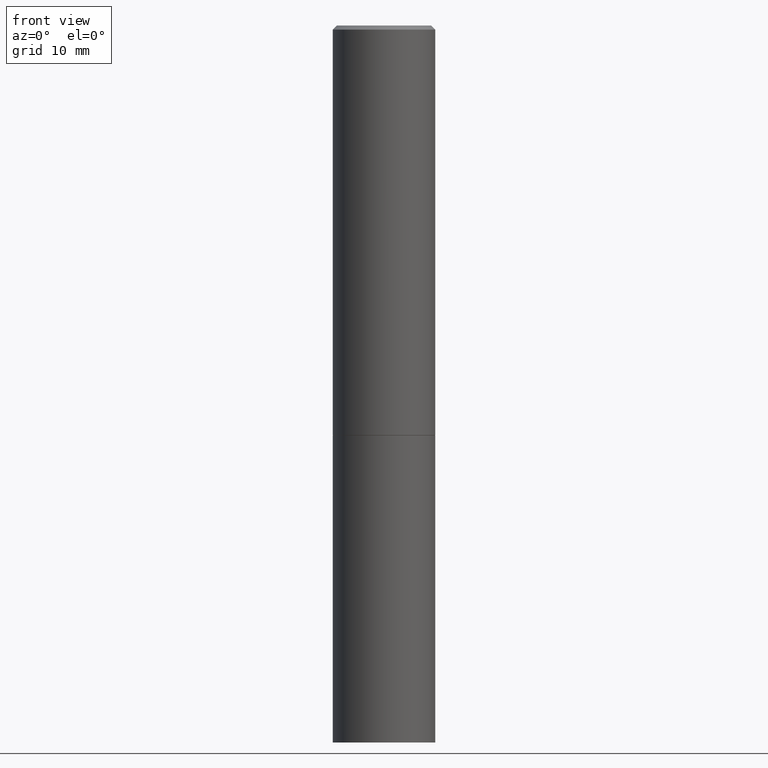
[diagram: clean part render]
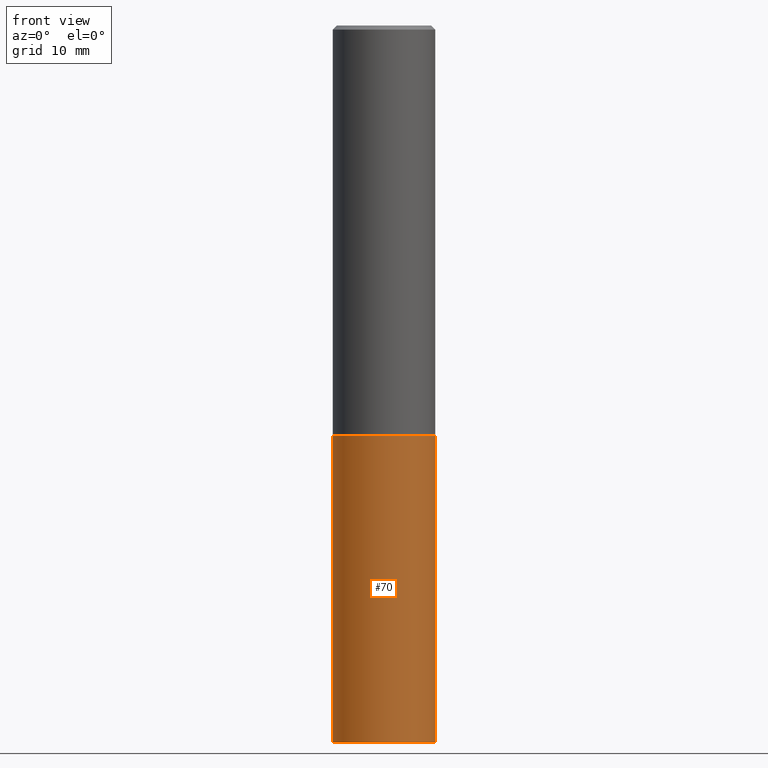
[diagram: same view with one face highlighted and labeled with its STEP entity id]
A machine part, front view. The second image highlights one B-rep face of the part: STEP entity #70.
In plain terms, the highlighted cylindrical surface (partial cylindrical patch) has radius 6.35 mm, axis along (-0, 0, 1).
Its self-contained STEP definition (entity closure, byte-faithful):
#4 = DIRECTION ( 'NONE',  ( -2.445468806185136597E-29, 3.491481338843145583E-15, 1.000000000000000000 ) ) ;
#5 = AXIS2_PLACEMENT_3D ( 'NONE', #92, #4, #265 ) ;
#28 = EDGE_LOOP ( 'NONE', ( #300, #117, #273, #296 ) ) ;
#31 = CARTESIAN_POINT ( 'NONE',  ( 0.000000000000000000, 0.000000000000000000, 0.000000000000000000 ) ) ;
#41 = LINE ( 'NONE', #327, #303 ) ;
#43 = EDGE_CURVE ( 'NONE', #280, #298, #129, .T. ) ;
#49 = AXIS2_PLACEMENT_3D ( 'NONE', #31, #116, #115 ) ;
#59 = DIRECTION ( 'NONE',  ( 1.000000000000000000, -6.982962677686266711E-15, 0.000000000000000000 ) ) ;
#61 = VERTEX_POINT ( 'NONE', #199 ) ;
#70 = ADVANCED_FACE ( 'NONE', ( #258 ), #287, .T. ) ;
#73 = DIRECTION ( 'NONE',  ( -2.445468806185136877E-29, 3.491481338843145188E-15, 1.000000000000000000 ) ) ;
#83 = DIRECTION ( 'NONE',  ( -2.445468806185136597E-29, 3.491481338843145583E-15, 1.000000000000000000 ) ) ;
#92 = CARTESIAN_POINT ( 'NONE',  ( 8.559140821647976968E-29, -1.222018468595100934E-14, -3.500000000000000000 ) ) ;
#102 = EDGE_CURVE ( 'NONE', #144, #280, #41, .T. ) ;
#113 = CIRCLE ( 'NONE', #5, 0.2500000000000000000 ) ;
#115 = DIRECTION ( 'NONE',  ( 1.000000000000000000, -6.982962677686266711E-15, 4.876176775795935793E-29 ) ) ;
#116 = DIRECTION ( 'NONE',  ( -2.445468806185136597E-29, 3.491481338843145583E-15, 1.000000000000000000 ) ) ;
#117 = ORIENTED_EDGE ( 'NONE', *, *, #351, .T. ) ;
#129 = CIRCLE ( 'NONE', #187, 0.2500000000000000000 ) ;
#132 = CARTESIAN_POINT ( 'NONE',  ( -0.2500000000000000000, -7.825216842418397817E-15, -1.999999999999999778 ) ) ;
#144 = VERTEX_POINT ( 'NONE', #321 ) ;
#160 = CARTESIAN_POINT ( 'NONE',  ( 0.2500000000000000000, -1.745740669421566678E-15, 1.219044193948983948E-29 ) ) ;
#187 = AXIS2_PLACEMENT_3D ( 'NONE', #289, #83, #59 ) ;
#199 = CARTESIAN_POINT ( 'NONE',  ( 0.2500000000000000000, -1.396592535537257602E-14, -3.500000000000000000 ) ) ;
#257 = EDGE_CURVE ( 'NONE', #61, #298, #277, .T. ) ;
#258 = FACE_OUTER_BOUND ( 'NONE', #28, .T. ) ;
#260 = CARTESIAN_POINT ( 'NONE',  ( 0.2500000000000000000, -8.728703347107857054E-15, -1.999999999999999778 ) ) ;
#265 = DIRECTION ( 'NONE',  ( 1.000000000000000000, -6.982962677686270655E-15, 0.000000000000000000 ) ) ;
#273 = ORIENTED_EDGE ( 'NONE', *, *, #257, .T. ) ;
#277 = LINE ( 'NONE', #160, #319 ) ;
#280 = VERTEX_POINT ( 'NONE', #132 ) ;
#287 = CYLINDRICAL_SURFACE ( 'NONE', #49, 0.2500000000000000000 ) ;
#289 = CARTESIAN_POINT ( 'NONE',  ( 4.890937612370272633E-29, -6.982962677686290376E-15, -1.999999999999999778 ) ) ;
#296 = ORIENTED_EDGE ( 'NONE', *, *, #43, .F. ) ;
#298 = VERTEX_POINT ( 'NONE', #260 ) ;
#300 = ORIENTED_EDGE ( 'NONE', *, *, #102, .F. ) ;
#303 = VECTOR ( 'NONE', #73, 39.37007874015748143 ) ;
#319 = VECTOR ( 'NONE', #363, 39.37007874015748143 ) ;
#321 = CARTESIAN_POINT ( 'NONE',  ( -0.2500000000000000000, -7.825216842418397817E-15, -3.500000000000000000 ) ) ;
#327 = CARTESIAN_POINT ( 'NONE',  ( -0.2500000000000000000, 1.776356839400250465E-15, -1.229733772563726445E-29 ) ) ;
#351 = EDGE_CURVE ( 'NONE', #144, #61, #113, .T. ) ;
#363 = DIRECTION ( 'NONE',  ( -2.445468806185136877E-29, 3.491481338843145188E-15, 1.000000000000000000 ) ) ;